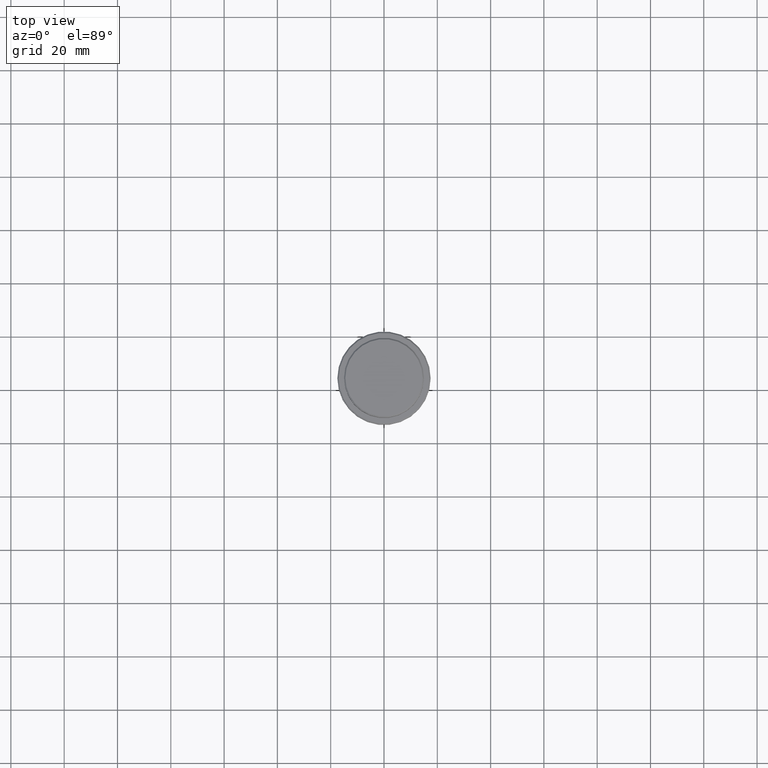
[diagram: clean part render]
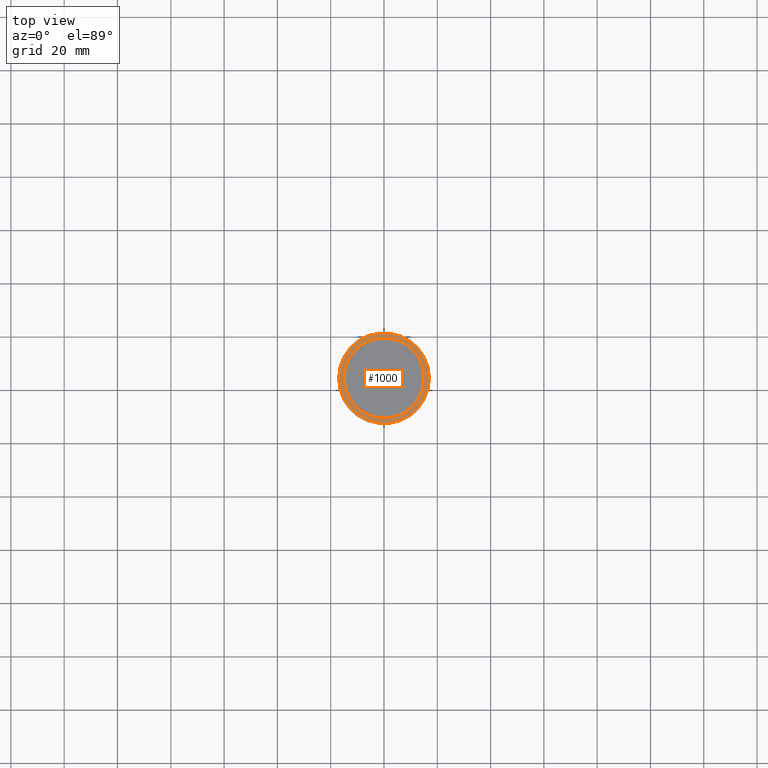
[diagram: same view with one face highlighted and labeled with its STEP entity id]
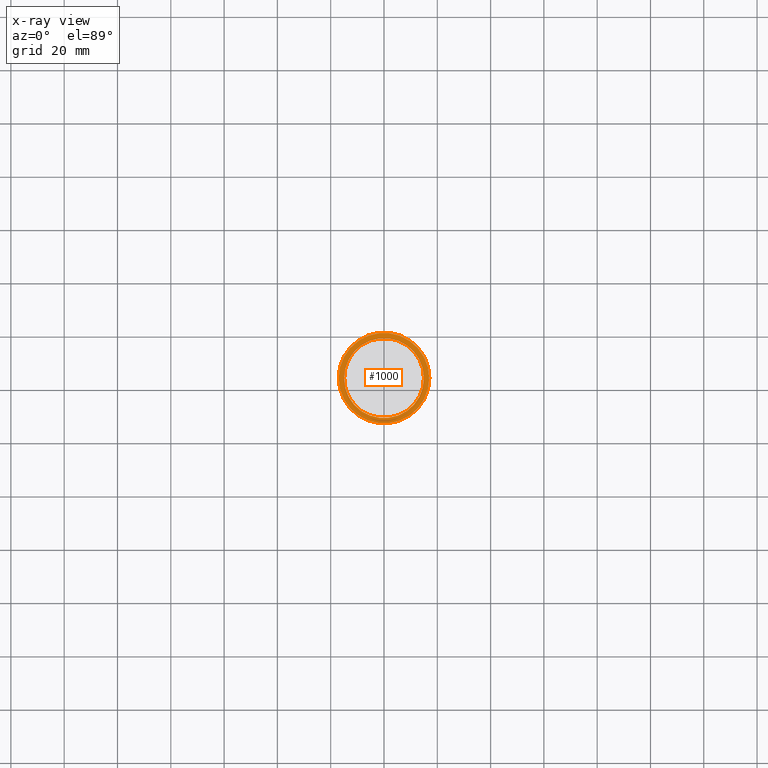
[diagram: x-ray of the same camera — body ghosted, the highlighted face saturated]
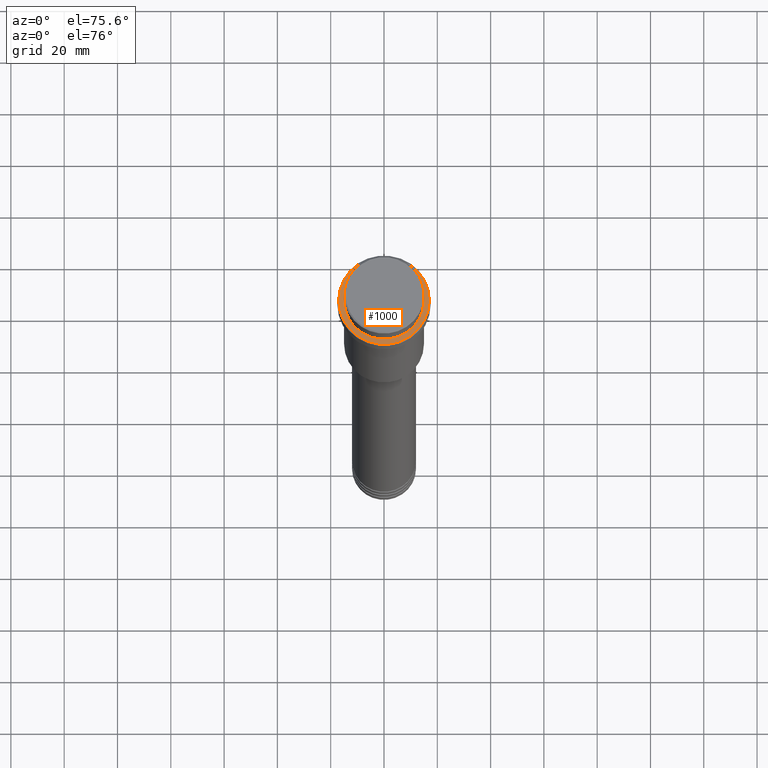
[diagram: same view with one face highlighted and labeled with its STEP entity id]
A machine part, top view. The second image highlights one B-rep face of the part: STEP entity #1000.
The next image is the same camera in x-ray: the body ghosted, the highlighted face saturated — about 0% of this face is hidden behind the body in this view.
A second angle (auxiliary view) of the same face is appended — the face is thin or edge-on in the first view.
In plain terms, the highlighted planar face has unit normal (0, -0, 1).
Its self-contained STEP definition (entity closure, byte-faithful):
#3 = EDGE_CURVE ( 'NONE', #43, #168, #718, .T. ) ;
#20 = DIRECTION ( 'NONE',  ( -0.000000000000000000, -0.000000000000000000, 1.000000000000000000 ) ) ;
#33 = VERTEX_POINT ( 'NONE', #215 ) ;
#43 = VERTEX_POINT ( 'NONE', #647 ) ;
#121 = CARTESIAN_POINT ( 'NONE',  ( 0.000000000000000000, 0.000000000000000000, -9.000000000000001776 ) ) ;
#126 = DIRECTION ( 'NONE',  ( 1.000000000000000000, 0.000000000000000000, 0.000000000000000000 ) ) ;
#142 = CARTESIAN_POINT ( 'NONE',  ( -14.99999999999999467, 1.836970198721029194E-15, -9.000000000000001776 ) ) ;
#168 = VERTEX_POINT ( 'NONE', #142 ) ;
#207 = AXIS2_PLACEMENT_3D ( 'NONE', #345, #569, #979 ) ;
#215 = CARTESIAN_POINT ( 'NONE',  ( 16.99999999999996092, 2.112515728529182095E-15, -9.000000000000001776 ) ) ;
#233 = ORIENTED_EDGE ( 'NONE', *, *, #3, .T. ) ;
#272 = DIRECTION ( 'NONE',  ( 0.000000000000000000, -0.000000000000000000, 1.000000000000000000 ) ) ;
#326 = ORIENTED_EDGE ( 'NONE', *, *, #558, .T. ) ;
#345 = CARTESIAN_POINT ( 'NONE',  ( 0.000000000000000000, 0.000000000000000000, -9.000000000000001776 ) ) ;
#361 = AXIS2_PLACEMENT_3D ( 'NONE', #455, #827, #573 ) ;
#388 = CARTESIAN_POINT ( 'NONE',  ( 0.000000000000000000, 14.49999999999999467, -9.000000000000001776 ) ) ;
#413 = ORIENTED_EDGE ( 'NONE', *, *, #1390, .T. ) ;
#450 = DIRECTION ( 'NONE',  ( 1.000000000000000000, 0.000000000000000000, 0.000000000000000000 ) ) ;
#455 = CARTESIAN_POINT ( 'NONE',  ( 0.000000000000000000, 0.000000000000000000, -9.000000000000001776 ) ) ;
#556 = ORIENTED_EDGE ( 'NONE', *, *, #851, .T. ) ;
#558 = EDGE_CURVE ( 'NONE', #168, #43, #1336, .T. ) ;
#562 = AXIS2_PLACEMENT_3D ( 'NONE', #388, #272, #1347 ) ;
#569 = DIRECTION ( 'NONE',  ( -0.000000000000000000, -0.000000000000000000, 1.000000000000000000 ) ) ;
#573 = DIRECTION ( 'NONE',  ( 1.000000000000000000, 0.000000000000000000, 0.000000000000000000 ) ) ;
#584 = FACE_OUTER_BOUND ( 'NONE', #974, .T. ) ;
#587 = CIRCLE ( 'NONE', #207, 16.99999999999996092 ) ;
#590 = CIRCLE ( 'NONE', #1316, 16.99999999999996092 ) ;
#647 = CARTESIAN_POINT ( 'NONE',  ( 14.99999999999999467, 0.000000000000000000, -9.000000000000001776 ) ) ;
#718 = CIRCLE ( 'NONE', #784, 14.99999999999999467 ) ;
#749 = DIRECTION ( 'NONE',  ( 0.000000000000000000, 0.000000000000000000, -1.000000000000000000 ) ) ;
#775 = CARTESIAN_POINT ( 'NONE',  ( -16.99999999999996092, 0.000000000000000000, -9.000000000000001776 ) ) ;
#778 = CARTESIAN_POINT ( 'NONE',  ( 0.000000000000000000, 0.000000000000000000, -9.000000000000001776 ) ) ;
#784 = AXIS2_PLACEMENT_3D ( 'NONE', #778, #749, #126 ) ;
#827 = DIRECTION ( 'NONE',  ( 0.000000000000000000, 0.000000000000000000, -1.000000000000000000 ) ) ;
#851 = EDGE_CURVE ( 'NONE', #861, #33, #587, .T. ) ;
#861 = VERTEX_POINT ( 'NONE', #775 ) ;
#974 = EDGE_LOOP ( 'NONE', ( #556, #413 ) ) ;
#979 = DIRECTION ( 'NONE',  ( 1.000000000000000000, 0.000000000000000000, 0.000000000000000000 ) ) ;
#1000 = ADVANCED_FACE ( 'NONE', ( #584, #1368 ), #1354, .T. ) ;
#1267 = EDGE_LOOP ( 'NONE', ( #233, #326 ) ) ;
#1316 = AXIS2_PLACEMENT_3D ( 'NONE', #121, #20, #450 ) ;
#1336 = CIRCLE ( 'NONE', #361, 14.99999999999999467 ) ;
#1347 = DIRECTION ( 'NONE',  ( 1.000000000000000000, 0.000000000000000000, 0.000000000000000000 ) ) ;
#1354 = PLANE ( 'NONE',  #562 ) ;
#1368 = FACE_BOUND ( 'NONE', #1267, .T. ) ;
#1390 = EDGE_CURVE ( 'NONE', #33, #861, #590, .T. ) ;